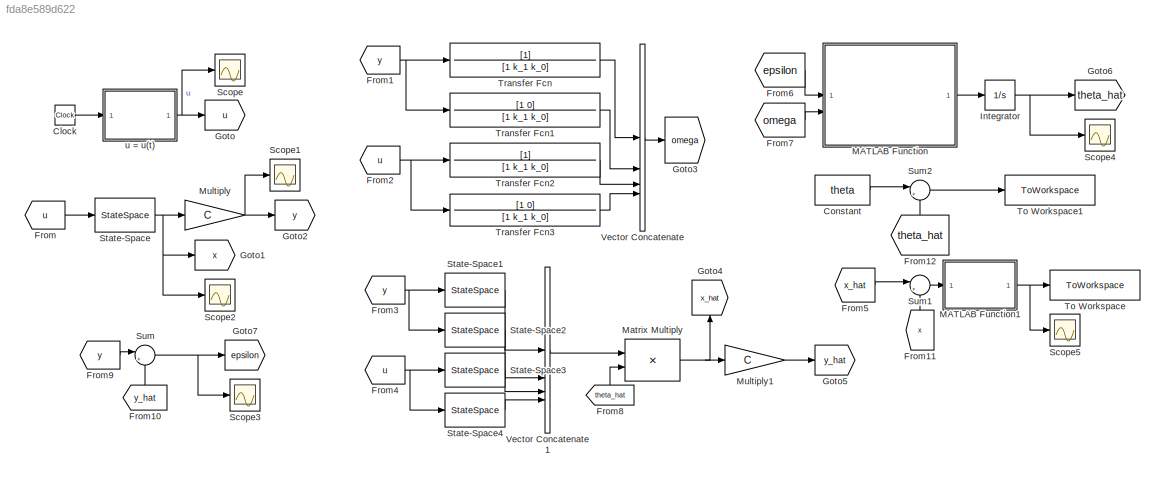
MODEL slx_fda8e589d622
KIND model
CONFIG AbsTol = auto
CONFIG EnableMultiTasking = off
CONFIG FixedStep = auto
CONFIG MaxStep = auto
CONFIG MinStep = auto
CONFIG RelTol = 1e-3
CONFIG SampleTimeConstraint = Unconstrained
CONFIG SolverName = VariableStepAuto
CONFIG StartTime = 0.0
CONFIG StopTime = 20
BLOCK [Clock] Clock
BLOCK [Constant] Constant
  Value = theta
BLOCK [From] From
  GotoTag = u
BLOCK [From] From1
  GotoTag = y
BLOCK [From] From10
  GotoTag = y_hat
  NameLocation = right
BLOCK [From] From11
  GotoTag = x
  NameLocation = right
BLOCK [From] From12
  GotoTag = theta_hat
  NameLocation = right
BLOCK [From] From2
  GotoTag = u
BLOCK [From] From3
  GotoTag = y
BLOCK [From] From4
  GotoTag = u
BLOCK [From] From5
  GotoTag = x_hat
BLOCK [From] From6
  GotoTag = epsilon
BLOCK [From] From7
  GotoTag = omega
BLOCK [From] From8
  GotoTag = theta_hat
  NameLocation = right
BLOCK [From] From9
  GotoTag = y
BLOCK [Goto] Goto
  GotoTag = u
BLOCK [Goto] Goto1
  GotoTag = x
BLOCK [Goto] Goto2
  GotoTag = y
BLOCK [Goto] Goto3
  GotoTag = omega
BLOCK [Goto] Goto4
  GotoTag = x_hat
  NameLocation = right
BLOCK [Goto] Goto5
  GotoTag = y_hat
BLOCK [Goto] Goto6
  GotoTag = theta_hat
BLOCK [Goto] Goto7
  GotoTag = epsilon
BLOCK [Integrator] Integrator
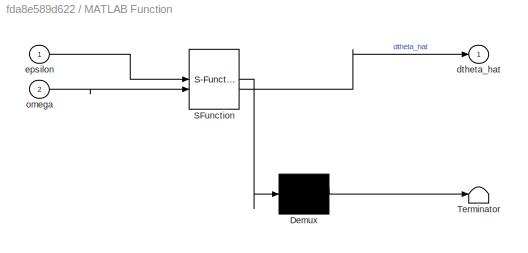
BLOCK [SubSystem] MATLAB Function
  ErrorFcn = Stateflow.Translate.translate
  PermitHierarchicalResolution = ExplicitOnly
  SFBlockType = MATLAB Function
  TreatAsAtomicUnit = on
BLOCK [Demux] MATLAB Function/ Demux 
  Outputs = 1
BLOCK [S-Function] MATLAB Function/ SFunction 
  EnableBusSupport = on
  FunctionName = sf_sfun
  Parameters = gamma
  PortCounts = [2 2]
  SFcnIsStateOwnerBlock = off
  SFunctionDeploymentMode = off
  Tag = Stateflow S-Function 1
BLOCK [Terminator] MATLAB Function/ Terminator 
BLOCK [Outport] MATLAB Function/dtheta_hat
BLOCK [Inport] MATLAB Function/epsilon
BLOCK [Inport] MATLAB Function/omega
  Port = 2
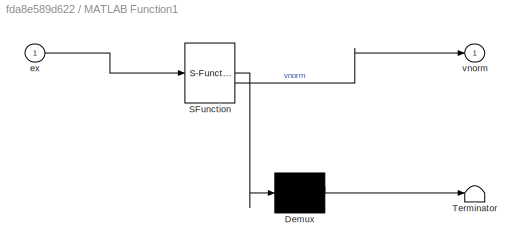
BLOCK [SubSystem] MATLAB Function1
  ErrorFcn = Stateflow.Translate.translate
  PermitHierarchicalResolution = ExplicitOnly
  SFBlockType = MATLAB Function
  TreatAsAtomicUnit = on
BLOCK [Demux] MATLAB Function1/ Demux 
  Outputs = 1
BLOCK [S-Function] MATLAB Function1/ SFunction 
  EnableBusSupport = on
  FunctionName = sf_sfun
  PortCounts = [1 2]
  SFcnIsStateOwnerBlock = off
  SFunctionDeploymentMode = off
  Tag = Stateflow S-Function 3
BLOCK [Terminator] MATLAB Function1/ Terminator 
BLOCK [Inport] MATLAB Function1/ex
BLOCK [Outport] MATLAB Function1/vnorm
BLOCK [Product] Matrix Multiply
  Multiplication = Matrix(*)
BLOCK [Gain] Multiply
  Gain = C
  Multiplication = Matrix(K*u) (u vector)
BLOCK [Gain] Multiply1
  Gain = C
  Multiplication = Matrix(K*u) (u vector)
BLOCK [Scope] Scope
  Floating = off
  NumInputPorts = 1
  ScopeSpecificationString = Simulink.scopes.TimeScopeBlockCfg('CurrentConfiguration', extmgr.ConfigurationSet(extmgr.Configuration('Core','General UI',true),extmgr.Configuration('Core','Source UI',true),extmgr.Configuration('Sources','WiredSimulink',true),extmgr.Configuration('Visuals','Time Domain',true,'SerializedDisplays',{struct('MinYLimReal','-12.49999','MaxYLimReal','12.49997','YLabelReal','','MinYLimMag','0.00000','Ma...<+1327ch>
BLOCK [Scope] Scope1
  Floating = off
  NumInputPorts = 1
  ScopeSpecificationString = Simulink.scopes.TimeScopeBlockCfg('CurrentConfiguration', extmgr.ConfigurationSet(extmgr.Configuration('Core','General UI',true),extmgr.Configuration('Core','Source UI',true),extmgr.Configuration('Sources','WiredSimulink',true,'DataLoggingVariableName','ScopeData1'),extmgr.Configuration('Visuals','Time Domain',true,'SerializedDisplays',{struct('MinYLimReal','-20.28877','MaxYLimReal','20.21294','YL...<+1373ch>
BLOCK [Scope] Scope2
  Floating = off
  NumInputPorts = 1
  ScopeSpecificationString = Simulink.scopes.TimeScopeBlockCfg('CurrentConfiguration', extmgr.ConfigurationSet(extmgr.Configuration('Core','General UI',true),extmgr.Configuration('Core','Source UI',true),extmgr.Configuration('Sources','WiredSimulink',true,'DataLoggingVariableName','ScopeData2'),extmgr.Configuration('Visuals','Time Domain',true,'SerializedDisplays',{struct('MinYLimReal','-20.28877','MaxYLimReal','20.21294','YL...<+1394ch>
BLOCK [Scope] Scope3
  Floating = off
  NumInputPorts = 1
  ScopeSpecificationString = Simulink.scopes.TimeScopeBlockCfg('CurrentConfiguration', extmgr.ConfigurationSet(extmgr.Configuration('Core','General UI',true),extmgr.Configuration('Core','Source UI',true),extmgr.Configuration('Sources','WiredSimulink',true,'DataLoggingVariableName','ScopeData3'),extmgr.Configuration('Visuals','Time Domain',true,'SerializedDisplays',{struct('MinYLimReal','-0.94282','MaxYLimReal','8.4618','YLabe...<+1358ch>
BLOCK [Scope] Scope4
  Floating = off
  NumInputPorts = 1
  ScopeSpecificationString = Simulink.scopes.TimeScopeBlockCfg('CurrentConfiguration', extmgr.ConfigurationSet(extmgr.Configuration('Core','General UI',true),extmgr.Configuration('Core','Source UI',true),extmgr.Configuration('Sources','WiredSimulink',true,'DataLoggingVariableName','ScopeData4'),extmgr.Configuration('Visuals','Time Domain',true,'SerializedDisplays',{struct('MinYLimReal','-0.38616','MaxYLimReal','3.47548','YLab...<+1416ch>
BLOCK [Scope] Scope5
  Floating = off
  NumInputPorts = 1
  ScopeSpecificationString = Simulink.scopes.TimeScopeBlockCfg('CurrentConfiguration', extmgr.ConfigurationSet(extmgr.Configuration('Core','General UI',true),extmgr.Configuration('Core','Source UI',true),extmgr.Configuration('Sources','WiredSimulink',true,'DataLoggingVariableName','ScopeData5'),extmgr.Configuration('Visuals','Time Domain',true,'SerializedDisplays',{struct('MinYLimReal','-1.9119','MaxYLimReal','17.20714','YLab...<+1412ch>
BLOCK [StateSpace] State-Space
  A = A
  B = b
  C = eye(2)
  D = [0; 0]
  InitialCondition = 0
BLOCK [StateSpace] State-Space1
  A = A_0
  B = [0; 1]
  C = eye(2)
  D = [0; 0]
  InitialCondition = 0
BLOCK [StateSpace] State-Space2
  A = A_0
  B = [1; 0]
  C = eye(2)
  D = [0; 0]
  InitialCondition = 0
BLOCK [StateSpace] State-Space3
  A = A_0
  B = [0; 1]
  C = eye(2)
  D = [0; 0]
  InitialCondition = 0
BLOCK [StateSpace] State-Space4
  A = A_0
  B = [1; 0]
  C = eye(2)
  D = [0; 0]
  InitialCondition = 0
BLOCK [Sum] Sum
  Inputs = |+-
BLOCK [Sum] Sum1
  Inputs = |+-
BLOCK [Sum] Sum2
  Inputs = |+-
BLOCK [ToWorkspace] To Workspace
  FixptAsFi = on
  MaxDataPoints = inf
  SampleTime = -1
  SaveFormat = Timeseries
  VariableName = ex_norm
BLOCK [ToWorkspace] To Workspace1
  FixptAsFi = on
  MaxDataPoints = inf
  SampleTime = -1
  SaveFormat = Timeseries
  VariableName = theta_tilde
BLOCK [TransferFcn] Transfer Fcn
  Denominator = [1 k_1 k_0]
BLOCK [TransferFcn] Transfer Fcn1
  Denominator = [1 k_1 k_0]
  Numerator = [1 0]
BLOCK [TransferFcn] Transfer Fcn2
  Denominator = [1 k_1 k_0]
BLOCK [TransferFcn] Transfer Fcn3
  Denominator = [1 k_1 k_0]
  Numerator = [1 0]
BLOCK [Concatenate] Vector Concatenate
  NumInputs = 4
BLOCK [Concatenate] Vector Concatenate1
  ConcatenateDimension = 2
  Mode = Multidimensional array
  NumInputs = 4
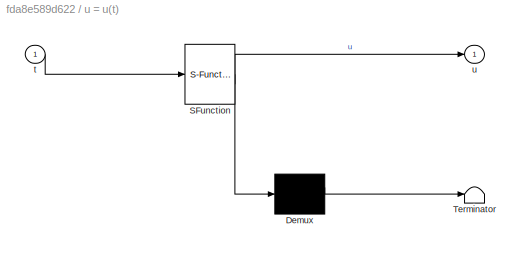
BLOCK [SubSystem] u = u(t)
  ErrorFcn = Stateflow.Translate.translate
  PermitHierarchicalResolution = ExplicitOnly
  SFBlockType = MATLAB Function
  TreatAsAtomicUnit = on
BLOCK [Demux] u = u(t)/ Demux 
  Outputs = 1
BLOCK [S-Function] u = u(t)/ SFunction 
  EnableBusSupport = on
  FunctionName = sf_sfun
  PortCounts = [1 2]
  SFcnIsStateOwnerBlock = off
  SFunctionDeploymentMode = off
  Tag = Stateflow S-Function 2
BLOCK [Terminator] u = u(t)/ Terminator 
BLOCK [Inport] u = u(t)/t
BLOCK [Outport] u = u(t)/u
LINE Clock:1 -> u = u(t):1
LINE Constant:1 -> Sum2:1
LINE From10:1 -> Sum:2
LINE From11:1 -> Sum1:2
LINE From12:1 -> Sum2:2
NET From1:1 -> Transfer Fcn1:1, Transfer Fcn:1
NET From2:1 -> Transfer Fcn2:1, Transfer Fcn3:1
NET From3:1 -> State-Space1:1, State-Space2:1
NET From4:1 -> State-Space3:1, State-Space4:1
LINE From5:1 -> Sum1:1
LINE From6:1 -> MATLAB Function:1
LINE From7:1 -> MATLAB Function:2
LINE From8:1 -> Matrix Multiply:2
LINE From9:1 -> Sum:1
LINE From:1 -> State-Space:1
NET Integrator:1 -> Goto6:1, Scope4:1
NET MATLAB Function1:1 -> Scope5:1, To Workspace:1
LINE MATLAB Function:1 -> Integrator:1
NET Matrix Multiply:1 -> Goto4:1, Multiply1:1
LINE Multiply1:1 -> Goto5:1
NET Multiply:1 -> Goto2:1, Scope1:1
LINE State-Space1:1 -> Vector Concatenate1:1
LINE State-Space2:1 -> Vector Concatenate1:2
LINE State-Space3:1 -> Vector Concatenate1:3
LINE State-Space4:1 -> Vector Concatenate1:4
NET State-Space:1 -> Goto1:1, Multiply:1, Scope2:1
LINE Sum1:1 -> MATLAB Function1:1
LINE Sum2:1 -> To Workspace1:1
NET Sum:1 -> Goto7:1, Scope3:1
LINE Transfer Fcn1:1 -> Vector Concatenate:2
LINE Transfer Fcn2:1 -> Vector Concatenate:3
LINE Transfer Fcn3:1 -> Vector Concatenate:4
LINE Transfer Fcn:1 -> Vector Concatenate:1
LINE Vector Concatenate1:1 -> Matrix Multiply:1
LINE Vector Concatenate:1 -> Goto3:1
NET u = u(t):1 -> Goto:1, Scope:1
note: NET lines group one-source signal fan-out (src -> all destinations, sorted); 1:1 wires keep LINE
CHART MATLAB Function states=1 transitions=1
  STATE_LABEL 'eML_blk_kernel()'
  STATE_LABEL 'SCRIPT:\nfunction dtheta_hat = dtheta_hat(epsilon, omega, gamma)\n\ndtheta_hat = epsilon * omega * gamma;\n'
CHART u = u(t) states=1 transitions=1
  STATE_LABEL 'eML_blk_kernel()'
  STATE_LABEL 'SCRIPT:\nfunction u = u_func(t)\n\nu = 10 * sin(t);\n'
CHART MATLAB Function1 states=1 transitions=1
  STATE_LABEL 'eML_blk_kernel()'
  STATE_LABEL 'SCRIPT:\nfunction vnorm = fcn(ex)\n\nvnorm = norm(ex);\n'
CHART  states=0 transitions=0
CHART  states=0 transitions=0
CHART  states=0 transitions=0
